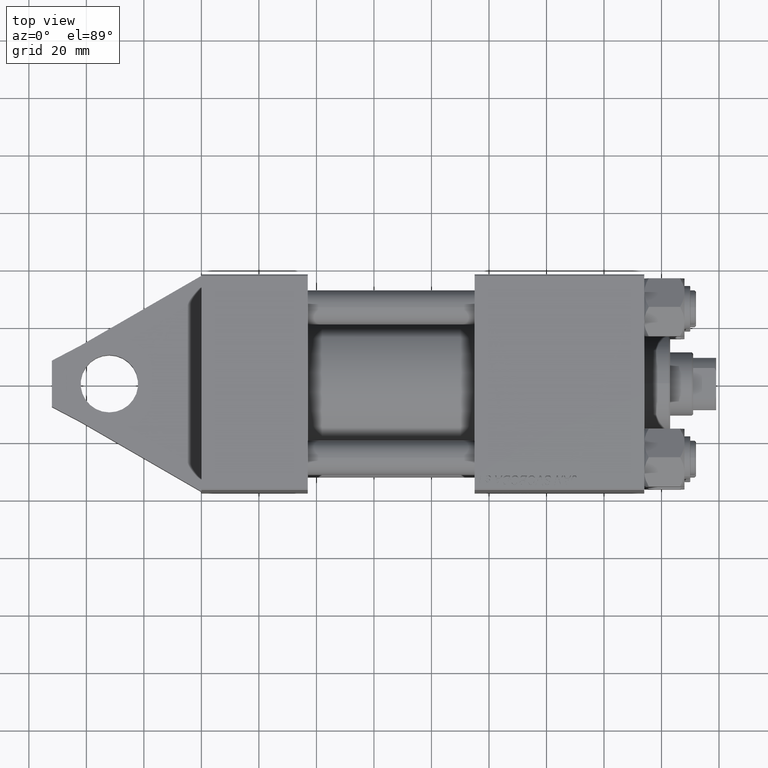
[diagram: clean part render]
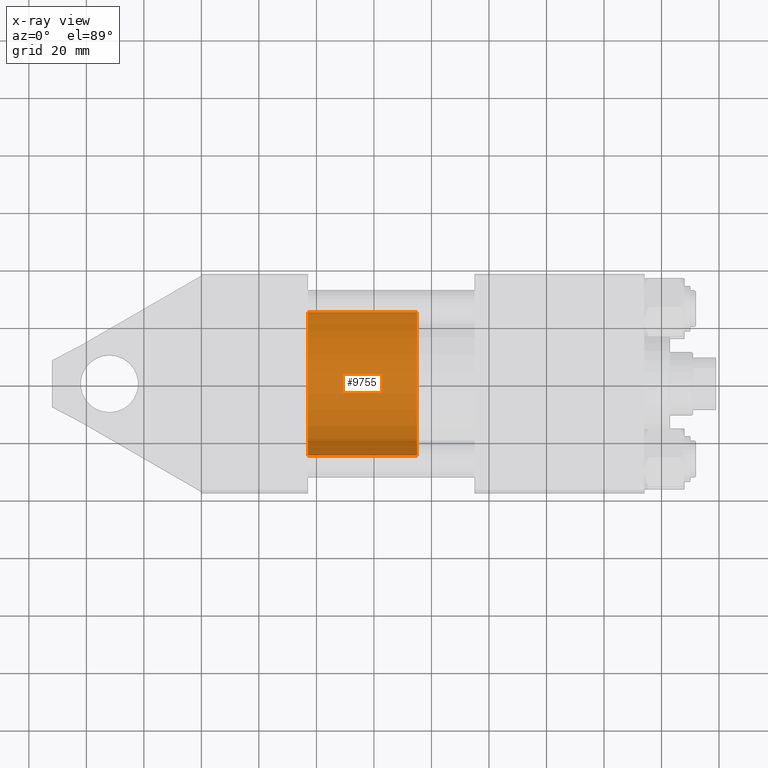
[diagram: x-ray — body ghosted, one internal face saturated and labeled with its STEP entity id]
A machine part, top view, then the same camera in x-ray: the body is ghosted and one INTERNAL B-rep face — a face not visible from any outside direction — is saturated and labeled: STEP entity #9755.
In plain terms, the highlighted cylindrical surface (partial cylindrical patch) has radius 25 mm, axis along (-1, -0, 0).
Its self-contained STEP definition (entity closure, byte-faithful):
#39 = VERTEX_POINT ( 'NONE', #35563 ) ;
#1241 = CIRCLE ( 'NONE', #20551, 25.00000000000000000 ) ;
#3707 = DIRECTION ( 'NONE',  ( 1.000000000000000000, 0.000000000000000000, 0.000000000000000000 ) ) ;
#3918 = CARTESIAN_POINT ( 'NONE',  ( 25.00000000000000000, 3.061616997868383043E-15, 0.000000000000000000 ) ) ;
#4403 = EDGE_CURVE ( 'NONE', #8940, #9258, #1241, .T. ) ;
#5687 = CARTESIAN_POINT ( 'NONE',  ( -25.00000000000000000, 0.000000000000000000, 0.000000000000000000 ) ) ;
#7098 = CARTESIAN_POINT ( 'NONE',  ( 0.000000000000000000, 0.000000000000000000, 0.000000000000000000 ) ) ;
#7917 = CARTESIAN_POINT ( 'NONE',  ( 25.00000000000000000, 3.061616997868383043E-15, 38.00000000000000000 ) ) ;
#8086 = CYLINDRICAL_SURFACE ( 'NONE', #45965, 25.00000000000000000 ) ;
#8237 = EDGE_LOOP ( 'NONE', ( #40708, #9416, #38417, #15740 ) ) ;
#8940 = VERTEX_POINT ( 'NONE', #3918 ) ;
#9258 = VERTEX_POINT ( 'NONE', #5687 ) ;
#9416 = ORIENTED_EDGE ( 'NONE', *, *, #34930, .T. ) ;
#9755 = ADVANCED_FACE ( 'NONE', ( #39979 ), #8086, .T. ) ;
#11145 = DIRECTION ( 'NONE',  ( 0.000000000000000000, 0.000000000000000000, 1.000000000000000000 ) ) ;
#15740 = ORIENTED_EDGE ( 'NONE', *, *, #35334, .F. ) ;
#16988 = CARTESIAN_POINT ( 'NONE',  ( 25.00000000000000000, 3.061616997868383043E-15, 38.00000000000000000 ) ) ;
#17909 = CARTESIAN_POINT ( 'NONE',  ( 0.000000000000000000, 0.000000000000000000, 38.00000000000000000 ) ) ;
#19506 = DIRECTION ( 'NONE',  ( -0.000000000000000000, -0.000000000000000000, -1.000000000000000000 ) ) ;
#20202 = DIRECTION ( 'NONE',  ( -0.000000000000000000, -0.000000000000000000, -1.000000000000000000 ) ) ;
#20551 = AXIS2_PLACEMENT_3D ( 'NONE', #7098, #21295, #35047 ) ;
#21295 = DIRECTION ( 'NONE',  ( 0.000000000000000000, 0.000000000000000000, 1.000000000000000000 ) ) ;
#24368 = LINE ( 'NONE', #28075, #31328 ) ;
#28075 = CARTESIAN_POINT ( 'NONE',  ( -25.00000000000000000, 0.000000000000000000, 38.00000000000000000 ) ) ;
#28337 = CIRCLE ( 'NONE', #34300, 25.00000000000000000 ) ;
#29114 = LINE ( 'NONE', #7917, #31299 ) ;
#30195 = DIRECTION ( 'NONE',  ( -1.000000000000000000, 0.000000000000000000, 0.000000000000000000 ) ) ;
#30716 = DIRECTION ( 'NONE',  ( -0.000000000000000000, -0.000000000000000000, -1.000000000000000000 ) ) ;
#31299 = VECTOR ( 'NONE', #30716, 1000.000000000000000 ) ;
#31328 = VECTOR ( 'NONE', #20202, 1000.000000000000000 ) ;
#34300 = AXIS2_PLACEMENT_3D ( 'NONE', #17909, #11145, #3707 ) ;
#34930 = EDGE_CURVE ( 'NONE', #45338, #8940, #29114, .T. ) ;
#35047 = DIRECTION ( 'NONE',  ( 1.000000000000000000, 0.000000000000000000, 0.000000000000000000 ) ) ;
#35135 = EDGE_CURVE ( 'NONE', #45338, #39, #28337, .T. ) ;
#35334 = EDGE_CURVE ( 'NONE', #39, #9258, #24368, .T. ) ;
#35563 = CARTESIAN_POINT ( 'NONE',  ( -25.00000000000000000, 0.000000000000000000, 38.00000000000000000 ) ) ;
#38417 = ORIENTED_EDGE ( 'NONE', *, *, #4403, .T. ) ;
#39979 = FACE_OUTER_BOUND ( 'NONE', #8237, .T. ) ;
#40708 = ORIENTED_EDGE ( 'NONE', *, *, #35135, .F. ) ;
#44189 = CARTESIAN_POINT ( 'NONE',  ( 0.000000000000000000, 0.000000000000000000, 38.00000000000000000 ) ) ;
#45338 = VERTEX_POINT ( 'NONE', #16988 ) ;
#45965 = AXIS2_PLACEMENT_3D ( 'NONE', #44189, #19506, #30195 ) ;